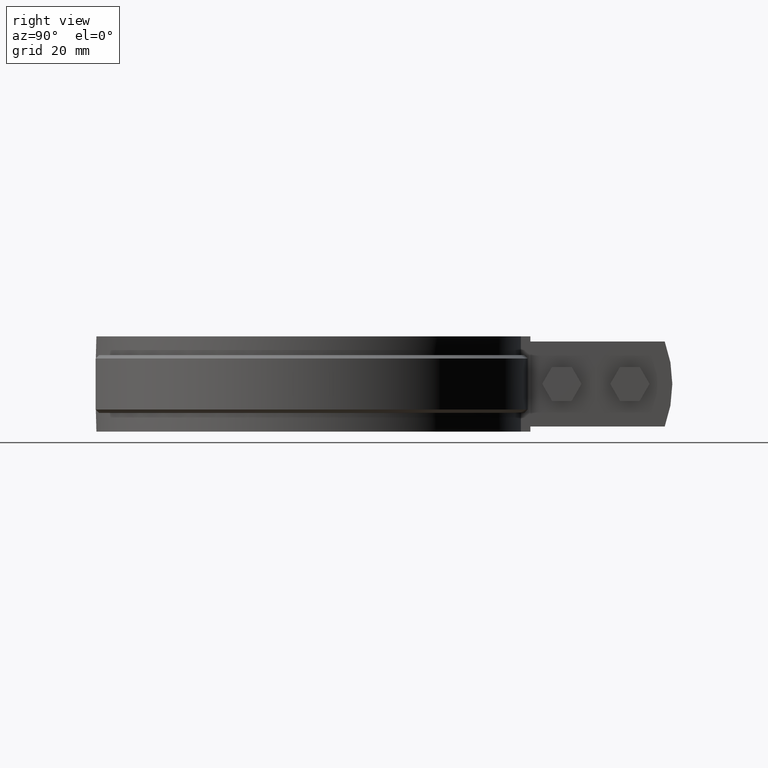
[diagram: clean part render]
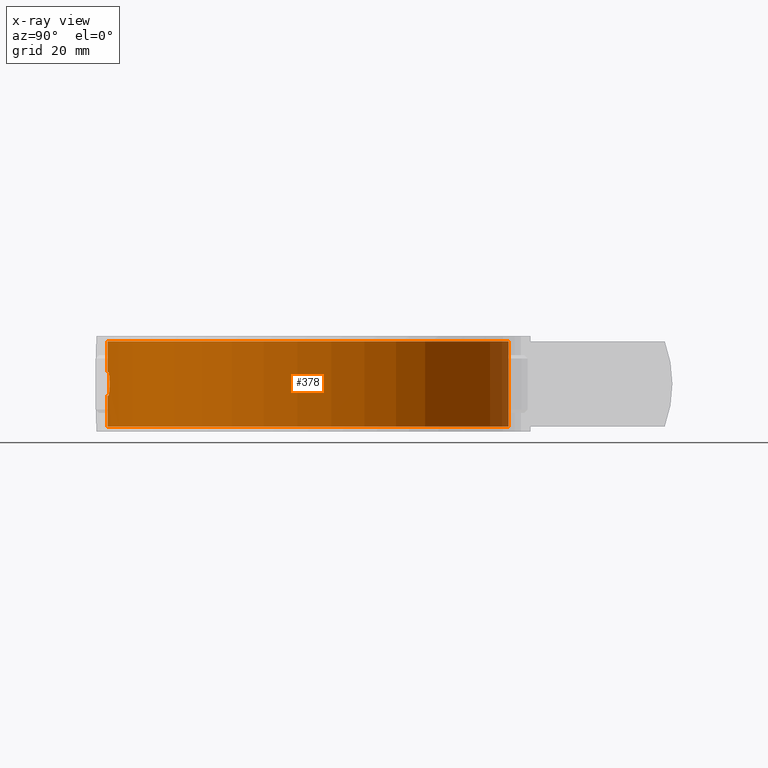
[diagram: x-ray — body ghosted, one internal face saturated and labeled with its STEP entity id]
A machine part, right view, then the same camera in x-ray: the body is ghosted and one INTERNAL B-rep face — a face not visible from any outside direction — is saturated and labeled: STEP entity #378.
In plain terms, the highlighted cylindrical surface (partial cylindrical patch) has radius 59.15 mm, axis along (0, 0, 1).
Its self-contained STEP definition (entity closure, byte-faithful):
#378 = ADVANCED_FACE( '', ( #645, #646 ), #647, .T. );
#645 = FACE_OUTER_BOUND( '', #1420, .T. );
#646 = FACE_BOUND( '', #1421, .T. );
#647 = CYLINDRICAL_SURFACE( '', #1422, 59.1500000000000 );
#1420 = EDGE_LOOP( '', ( #2889, #2890, #2891, #2892 ) );
#1421 = EDGE_LOOP( '', ( #2893, #2894, #2895, #2896, #2897, #2898, #2899, #2900, #2901, #2902, #2903, #2904, #2905, #2906, #2907, #2908 ) );
#1422 = AXIS2_PLACEMENT_3D( '', #2909, #2910, #2911 );
#2889 = ORIENTED_EDGE( '', *, *, #4095, .F. );
#2890 = ORIENTED_EDGE( '', *, *, #4029, .T. );
#2891 = ORIENTED_EDGE( '', *, *, #4024, .T. );
#2892 = ORIENTED_EDGE( '', *, *, #4096, .F. );
#2893 = ORIENTED_EDGE( '', *, *, #4097, .F. );
#2894 = ORIENTED_EDGE( '', *, *, #4098, .F. );
#2895 = ORIENTED_EDGE( '', *, *, #4091, .F. );
#2896 = ORIENTED_EDGE( '', *, *, #4099, .F. );
#2897 = ORIENTED_EDGE( '', *, *, #4057, .F. );
#2898 = ORIENTED_EDGE( '', *, *, #4100, .F. );
#2899 = ORIENTED_EDGE( '', *, *, #4101, .F. );
#2900 = ORIENTED_EDGE( '', *, *, #4102, .F. );
#2901 = ORIENTED_EDGE( '', *, *, #4103, .F. );
#2902 = ORIENTED_EDGE( '', *, *, #4104, .F. );
#2903 = ORIENTED_EDGE( '', *, *, #4105, .F. );
#2904 = ORIENTED_EDGE( '', *, *, #4106, .F. );
#2905 = ORIENTED_EDGE( '', *, *, #4107, .F. );
#2906 = ORIENTED_EDGE( '', *, *, #4108, .F. );
#2907 = ORIENTED_EDGE( '', *, *, #4109, .F. );
#2908 = ORIENTED_EDGE( '', *, *, #4110, .F. );
#2909 = CARTESIAN_POINT( '', ( 0.000000000000000, 0.000000000000000, -14.0000000000000 ) );
#2910 = DIRECTION( '', ( 0.000000000000000, 0.000000000000000, 1.00000000000000 ) );
#2911 = DIRECTION( '', ( -0.0845308537616220, -0.996420862267712, 0.000000000000000 ) );
#4024 = EDGE_CURVE( '', #4610, #4611, #4612, .T. );
#4029 = EDGE_CURVE( '', #4619, #4610, #4620, .F. );
#4057 = EDGE_CURVE( '', #4670, #4665, #4672, .T. );
#4091 = EDGE_CURVE( '', #4733, #4731, #4735, .T. );
#4095 = EDGE_CURVE( '', #4619, #4741, #4742, .T. );
#4096 = EDGE_CURVE( '', #4741, #4611, #4743, .F. );
#4097 = EDGE_CURVE( '', #4744, #4745, #4746, .T. );
#4098 = EDGE_CURVE( '', #4731, #4744, #4747, .F. );
#4099 = EDGE_CURVE( '', #4665, #4733, #4748, .F. );
#4100 = EDGE_CURVE( '', #4749, #4670, #4750, .F. );
#4101 = EDGE_CURVE( '', #4751, #4749, #4752, .T. );
#4102 = EDGE_CURVE( '', #4753, #4751, #4754, .F. );
#4103 = EDGE_CURVE( '', #4755, #4753, #4756, .T. );
#4104 = EDGE_CURVE( '', #4757, #4755, #4758, .F. );
#4105 = EDGE_CURVE( '', #4759, #4757, #4760, .T. );
#4106 = EDGE_CURVE( '', #4761, #4759, #4762, .F. );
#4107 = EDGE_CURVE( '', #4763, #4761, #4764, .T. );
#4108 = EDGE_CURVE( '', #4765, #4763, #4766, .F. );
#4109 = EDGE_CURVE( '', #4767, #4765, #4768, .T. );
#4110 = EDGE_CURVE( '', #4745, #4767, #4769, .F. );
#4610 = VERTEX_POINT( '', #6552 );
#4611 = VERTEX_POINT( '', #6553 );
#4612 = LINE( '', #6554, #6555 );
#4619 = VERTEX_POINT( '', #6564 );
#4620 = CIRCLE( '', #6565, 59.1500000000000 );
#4665 = VERTEX_POINT( '', #6803 );
#4670 = VERTEX_POINT( '', #6818 );
#4672 = B_SPLINE_CURVE_WITH_KNOTS( '', 3, ( #6821, #6822, #6823, #6824, #6825, #6826, #6827, #6828, #6829, #6830 ), .UNSPECIFIED., .F., .F., ( 4, 2, 2, 2, 4 ), ( 9.26342742239755E-019, 0.000671559393518248, 0.00134311878703649, 0.00201467818055474, 0.00268623757407299 ), .UNSPECIFIED. );
#4731 = VERTEX_POINT( '', #7196 );
#4733 = VERTEX_POINT( '', #7199 );
#4735 = B_SPLINE_CURVE_WITH_KNOTS( '', 3, ( #7202, #7203, #7204, #7205, #7206, #7207 ), .UNSPECIFIED., .F., .F., ( 4, 2, 4 ), ( 0.00245575796357472, 0.00279123420842322, 0.00312671045327171 ), .UNSPECIFIED. );
#4741 = VERTEX_POINT( '', #7214 );
#4742 = LINE( '', #7215, #7216 );
#4743 = CIRCLE( '', #7217, 59.1500000000000 );
#4744 = VERTEX_POINT( '', #7218 );
#4745 = VERTEX_POINT( '', #7219 );
#4746 = B_SPLINE_CURVE_WITH_KNOTS( '', 3, ( #7220, #7221, #7222, #7223, #7224, #7225, #7226, #7227, #7228, #7229, #7230, #7231, #7232, #7233, #7234, #7235, #7236, #7237, #7238, #7239, #7240, #7241, #7242, #7243, #7244, #7245, #7246, #7247, #7248, #7249, #7250, #7251, #7252, #7253 ), .UNSPECIFIED., .F., .F., ( 4, 2, 2, 2, 2, 2, 2, 2, 2, 2, 2, 2, 2, 2, 2, 2, 4 ), ( 5.27595548005020E-018, 0.000685840484445841, 0.00137168096889168, 0.00205752145333751, 0.00274336193778335, 0.00342920242222918, 0.00411504290667502, 0.00480088339112085, 0.00548672387556669, 0.00617256436001253, 0.00685840484445836, 0.00754424532890420, 0.00823008581335003, 0.00891592629779587, 0.00960176678224171, 0.0102876072666875, 0.0109734477511334 ), .UNSPECIFIED. );
#4747 = CIRCLE( '', #7254, 59.1500000000000 );
#4748 = ELLIPSE( '', #7255, 269.461386027857, 59.1500000000000 );
#4749 = VERTEX_POINT( '', #7256 );
#4750 = ELLIPSE( '', #7257, 269.461248569451, 59.1500000000000 );
#4751 = VERTEX_POINT( '', #7258 );
#4752 = B_SPLINE_CURVE_WITH_KNOTS( '', 3, ( #7259, #7260, #7261, #7262, #7263, #7264 ), .UNSPECIFIED., .F., .F., ( 4, 2, 4 ), ( 0.000000000000000, 0.000335831979060003, 0.000671663958120007 ), .UNSPECIFIED. );
#4753 = VERTEX_POINT( '', #7265 );
#4754 = CIRCLE( '', #7266, 59.1500000000000 );
#4755 = VERTEX_POINT( '', #7267 );
#4756 = B_SPLINE_CURVE_WITH_KNOTS( '', 3, ( #7268, #7269, #7270, #7271, #7272, #7273, #7274, #7275, #7276, #7277, #7278, #7279, #7280, #7281, #7282, #7283, #7284, #7285, #7286, #7287, #7288, #7289, #7290, #7291, #7292, #7293, #7294, #7295, #7296, #7297, #7298, #7299, #7300, #7301 ), .UNSPECIFIED., .F., .F., ( 4, 2, 2, 2, 2, 2, 2, 2, 2, 2, 2, 2, 2, 2, 2, 2, 4 ), ( 2.63797774002510E-018, 0.000685840484445827, 0.00137168096889165, 0.00205752145333748, 0.00274336193778330, 0.00342920242222913, 0.00411504290667495, 0.00480088339112077, 0.00548672387556660, 0.00617256436001242, 0.00685840484445825, 0.00754424532890407, 0.00823008581334990, 0.00891592629779572, 0.00960176678224155, 0.0102876072666874, 0.0109734477511332 ), .UNSPECIFIED. );
#4757 = VERTEX_POINT( '', #7302 );
#4758 = CIRCLE( '', #7303, 59.1500000000000 );
#4759 = VERTEX_POINT( '', #7304 );
#4760 = B_SPLINE_CURVE_WITH_KNOTS( '', 3, ( #7305, #7306, #7307, #7308, #7309, #7310 ), .UNSPECIFIED., .F., .F., ( 4, 2, 4 ), ( 0.000891799807954436, 0.00122762914136390, 0.00156345847477337 ), .UNSPECIFIED. );
#4761 = VERTEX_POINT( '', #7311 );
#4762 = ELLIPSE( '', #7312, 269.461386027933, 59.1500000000000 );
#4763 = VERTEX_POINT( '', #7313 );
#4764 = B_SPLINE_CURVE_WITH_KNOTS( '', 3, ( #7314, #7315, #7316, #7317, #7318, #7319, #7320, #7321, #7322, #7323 ), .UNSPECIFIED., .F., .F., ( 4, 2, 2, 2, 4 ), ( 9.69739903612216E-019, 0.000671559393518252, 0.00134311878703650, 0.00201467818055476, 0.00268623757407301 ), .UNSPECIFIED. );
#4765 = VERTEX_POINT( '', #7324 );
#4766 = ELLIPSE( '', #7325, 269.461248569451, 59.1500000000000 );
#4767 = VERTEX_POINT( '', #7326 );
#4768 = B_SPLINE_CURVE_WITH_KNOTS( '', 3, ( #7327, #7328, #7329, #7330, #7331, #7332 ), .UNSPECIFIED., .F., .F., ( 4, 2, 4 ), ( 0.00156361056445072, 0.00189944101561561, 0.00223527146678049 ), .UNSPECIFIED. );
#4769 = CIRCLE( '', #7333, 59.1500000000000 );
#6552 = CARTESIAN_POINT( '', ( 6.66210780370074, 58.7736235024851, -12.5000000000000 ) );
#6553 = CARTESIAN_POINT( '', ( 6.66210780370074, 58.7736235024851, 12.5000000000000 ) );
#6554 = CARTESIAN_POINT( '', ( 6.66210780370075, 58.7736235024851, -14.0000000000000 ) );
#6555 = VECTOR( '', #8190, 1000.00000000000 );
#6564 = CARTESIAN_POINT( '', ( -6.66210780370072, 58.7736235024851, -12.5000000000000 ) );
#6565 = AXIS2_PLACEMENT_3D( '', #8199, #8200, #8201 );
#6803 = CARTESIAN_POINT( '', ( 0.975609999999989, -59.1419536803435, -4.71951200000003 ) );
#6818 = CARTESIAN_POINT( '', ( -0.975609757981834, -59.1419536843359, -4.71951218674745 ) );
#6821 = CARTESIAN_POINT( '', ( -0.975609757981835, -59.1419536843359, -4.71951218674745 ) );
#6822 = CARTESIAN_POINT( '', ( -0.925764000266899, -59.1427759434023, -4.94104879757687 ) );
#6823 = CARTESIAN_POINT( '', ( -0.802006839384733, -59.1448284066473, -5.13901853152156 ) );
#6824 = CARTESIAN_POINT( '', ( -0.447387521711693, -59.1485738342658, -5.42271559104646 ) );
#6825 = CARTESIAN_POINT( '', ( -0.227075775181514, -59.1500000017834, -5.50000008621365 ) );
#6826 = CARTESIAN_POINT( '', ( 0.227076704276917, -59.1499999982166, -5.49999992065343 ) );
#6827 = CARTESIAN_POINT( '', ( 0.447393780783083, -59.1485737775223, -5.42271183234167 ) );
#6828 = CARTESIAN_POINT( '', ( 0.802006826849413, -59.1448283974158, -5.13901761295266 ) );
#6829 = CARTESIAN_POINT( '', ( 0.925764284607065, -59.1427759389158, -4.94104862074254 ) );
#6830 = CARTESIAN_POINT( '', ( 0.975609999999990, -59.1419536803435, -4.71951200000003 ) );
#7196 = CARTESIAN_POINT( '', ( 1.65000000000005, -59.1269819963779, -3.50000000000001 ) );
#7199 = CARTESIAN_POINT( '', ( 1.16219512100137, -59.1385813365583, -3.89024390662345 ) );
#7202 = CARTESIAN_POINT( '', ( 1.16219512100946, -59.1385813365581, -3.89024390662492 ) );
#7203 = CARTESIAN_POINT( '', ( 1.18676342495071, -59.1380985187034, -3.78105144028861 ) );
#7204 = CARTESIAN_POINT( '', ( 1.25006733674977, -59.1368536826979, -3.67972455396494 ) );
#7205 = CARTESIAN_POINT( '', ( 1.42474342103315, -59.1329031759769, -3.53980224891950 ) );
#7206 = CARTESIAN_POINT( '', ( 1.53660865160900, -59.1301463000262, -3.50000000000003 ) );
#7207 = CARTESIAN_POINT( '', ( 1.65000000000005, -59.1269819963779, -3.50000000000003 ) );
#7214 = CARTESIAN_POINT( '', ( -6.66210780370072, 58.7736235024851, 12.5000000000000 ) );
#7215 = CARTESIAN_POINT( '', ( -6.66210780370072, 58.7736235024851, -14.0000000000000 ) );
#7216 = VECTOR( '', #8275, 1000.00000000000 );
#7217 = AXIS2_PLACEMENT_3D( '', #8276, #8277, #8278 );
#7218 = CARTESIAN_POINT( '', ( 5.00000000000003, -58.9382940031352, -3.50000000000002 ) );
#7219 = CARTESIAN_POINT( '', ( 4.99999999999998, -58.9382940031352, 3.49999999999999 ) );
#7220 = CARTESIAN_POINT( '', ( 5.00000000000003, -58.9382940031352, -3.50000000000005 ) );
#7221 = CARTESIAN_POINT( '', ( 5.23108472953870, -58.9186900484019, -3.50000000000005 ) );
#7222 = CARTESIAN_POINT( '', ( 5.45819630642193, -58.8980553882998, -3.47733987116120 ) );
#7223 = CARTESIAN_POINT( '', ( 5.90483281279596, -58.8549554829124, -3.38867437439390 ) );
#7224 = CARTESIAN_POINT( '', ( 6.12663036380665, -58.8322377638681, -3.32161878510515 ) );
#7225 = CARTESIAN_POINT( '', ( 6.54985499710422, -58.7866243242112, -3.14648960242452 ) );
#7226 = CARTESIAN_POINT( '', ( 6.75056696535412, -58.7638403280690, -3.03934362483283 ) );
#7227 = CARTESIAN_POINT( '', ( 7.13046567819295, -58.7189538706935, -2.78625382261613 ) );
#7228 = CARTESIAN_POINT( '', ( 7.31051535566461, -58.6967236501177, -2.63885514677865 ) );
#7229 = CARTESIAN_POINT( '', ( 7.63349595950092, -58.6555942895473, -2.31662183485662 ) );
#7230 = CARTESIAN_POINT( '', ( 7.77849157376942, -58.6364586331887, -2.14076483153374 ) );
#7231 = CARTESIAN_POINT( '', ( 8.03472267801004, -58.6018979529872, -1.75879156155893 ) );
#7232 = CARTESIAN_POINT( '', ( 8.14403067117517, -58.5867314208868, -1.55472622131932 ) );
#7233 = CARTESIAN_POINT( '', ( 8.31932961901536, -58.5620960079670, -1.13320490860009 ) );
#7234 = CARTESIAN_POINT( '', ( 8.38677917544447, -58.5524254931442, -0.912778948258099 ) );
#7235 = CARTESIAN_POINT( '', ( 8.47740967954881, -58.5393724017687, -0.459413225960789 ) );
#7236 = CARTESIAN_POINT( '', ( 8.49981926058052, -58.5361048633271, -0.231619601638272 ) );
#7237 = CARTESIAN_POINT( '', ( 8.50017858271889, -58.5360526863133, 0.226124712646307 ) );
#7238 = CARTESIAN_POINT( '', ( 8.47740917893715, -58.5393721009278, 0.458600165287511 ) );
#7239 = CARTESIAN_POINT( '', ( 8.38772872888854, -58.5522891023792, 0.908835941642522 ) );
#7240 = CARTESIAN_POINT( '', ( 8.32137719446028, -58.5618054638645, 1.12746850434298 ) );
#7241 = CARTESIAN_POINT( '', ( 8.14559362537556, -58.5865145070966, 1.55176429916493 ) );
#7242 = CARTESIAN_POINT( '', ( 8.03571203668991, -58.6017595818350, 1.75684685243296 ) );
#7243 = CARTESIAN_POINT( '', ( 7.78193311994009, -58.6359992746825, 2.13609610008257 ) );
#7244 = CARTESIAN_POINT( '', ( 7.63715711120224, -58.6551228864835, 2.31272799926857 ) );
#7245 = CARTESIAN_POINT( '', ( 7.31049668957843, -58.6967311502211, 2.63911225134749 ) );
#7246 = CARTESIAN_POINT( '', ( 7.13372425938852, -58.7185558813006, 2.78370983069290 ) );
#7247 = CARTESIAN_POINT( '', ( 6.75516974813841, -58.7633092011354, 3.03664268425166 ) );
#7248 = CARTESIAN_POINT( '', ( 6.55091862757238, -58.7865057023843, 3.14596549535335 ) );
#7249 = CARTESIAN_POINT( '', ( 6.12775257217611, -58.8321207842767, 3.32123796546634 ) );
#7250 = CARTESIAN_POINT( '', ( 5.91000018107458, -58.8544389990636, 3.38733337480229 ) );
#7251 = CARTESIAN_POINT( '', ( 5.46223010274416, -58.8976836075875, 3.47684786174522 ) );
#7252 = CARTESIAN_POINT( '', ( 5.23108267661422, -58.9186902225607, 3.50000000000000 ) );
#7253 = CARTESIAN_POINT( '', ( 4.99999999999998, -58.9382940031352, 3.49999999999999 ) );
#7254 = AXIS2_PLACEMENT_3D( '', #8279, #8280, #8281 );
#7255 = AXIS2_PLACEMENT_3D( '', #8282, #8283, #8284 );
#7256 = CARTESIAN_POINT( '', ( -1.16219499393677, -59.1385813390554, -3.89024402694773 ) );
#7257 = AXIS2_PLACEMENT_3D( '', #8285, #8286, #8287 );
#7258 = CARTESIAN_POINT( '', ( -1.64999999892698, -59.1269819964079, -3.50000000000000 ) );
#7259 = CARTESIAN_POINT( '', ( -1.64999999785400, -59.1269819964378, -3.50000000000002 ) );
#7260 = CARTESIAN_POINT( '', ( -1.53648889603535, -59.1301496419261, -3.50000000000002 ) );
#7261 = CARTESIAN_POINT( '', ( -1.42634097780646, -59.1328666315414, -3.53862533781436 ) );
#7262 = CARTESIAN_POINT( '', ( -1.24902063126806, -59.1368777676950, -3.68046045874459 ) );
#7263 = CARTESIAN_POINT( '', ( -1.18712084828899, -59.1380914946511, -3.77946242125231 ) );
#7264 = CARTESIAN_POINT( '', ( -1.16219499393677, -59.1385813390554, -3.89024402694773 ) );
#7265 = CARTESIAN_POINT( '', ( -4.99999999999992, -58.9382940031352, -3.49999999999999 ) );
#7266 = AXIS2_PLACEMENT_3D( '', #8288, #8289, #8290 );
#7267 = CARTESIAN_POINT( '', ( -4.99999999999992, -58.9382940031352, 3.49999999999998 ) );
#7268 = CARTESIAN_POINT( '', ( -4.99999999999992, -58.9382940031352, 3.49999999999997 ) );
#7269 = CARTESIAN_POINT( '', ( -5.23108472953858, -58.9186900484019, 3.49999999999997 ) );
#7270 = CARTESIAN_POINT( '', ( -5.45819630642181, -58.8980553882998, 3.47733987116112 ) );
#7271 = CARTESIAN_POINT( '', ( -5.90483281279584, -58.8549554829124, 3.38867437439382 ) );
#7272 = CARTESIAN_POINT( '', ( -6.12663036380652, -58.8322377638681, 3.32161878510508 ) );
#7273 = CARTESIAN_POINT( '', ( -6.54985499710409, -58.7866243242112, 3.14648960242445 ) );
#7274 = CARTESIAN_POINT( '', ( -6.75056696535398, -58.7638403280690, 3.03934362483276 ) );
#7275 = CARTESIAN_POINT( '', ( -7.13046567819281, -58.7189538706935, 2.78625382261606 ) );
#7276 = CARTESIAN_POINT( '', ( -7.31051535566446, -58.6967236501177, 2.63885514677859 ) );
#7277 = CARTESIAN_POINT( '', ( -7.63349595950077, -58.6555942895473, 2.31662183485656 ) );
#7278 = CARTESIAN_POINT( '', ( -7.77849157376927, -58.6364586331887, 2.14076483153368 ) );
#7279 = CARTESIAN_POINT( '', ( -8.03472267800989, -58.6018979529872, 1.75879156155888 ) );
#7280 = CARTESIAN_POINT( '', ( -8.14403067117501, -58.5867314208869, 1.55472622131928 ) );
#7281 = CARTESIAN_POINT( '', ( -8.31932961901521, -58.5620960079670, 1.13320490860005 ) );
#7282 = CARTESIAN_POINT( '', ( -8.38677917544432, -58.5524254931442, 0.912778948258069 ) );
#7283 = CARTESIAN_POINT( '', ( -8.47740967954866, -58.5393724017687, 0.459413225960766 ) );
#7284 = CARTESIAN_POINT( '', ( -8.49981926058036, -58.5361048633271, 0.231619601638253 ) );
#7285 = CARTESIAN_POINT( '', ( -8.50017858271874, -58.5360526863133, -0.226124712646318 ) );
#7286 = CARTESIAN_POINT( '', ( -8.47740917893700, -58.5393721009278, -0.458600165287519 ) );
#7287 = CARTESIAN_POINT( '', ( -8.38772872888840, -58.5522891023792, -0.908835941642525 ) );
#7288 = CARTESIAN_POINT( '', ( -8.32137719446014, -58.5618054638645, -1.12746850434298 ) );
#7289 = CARTESIAN_POINT( '', ( -8.14559362537543, -58.5865145070966, -1.55176429916493 ) );
#7290 = CARTESIAN_POINT( '', ( -8.03571203668978, -58.6017595818350, -1.75684685243295 ) );
#7291 = CARTESIAN_POINT( '', ( -7.78193311993997, -58.6359992746825, -2.13609610008255 ) );
#7292 = CARTESIAN_POINT( '', ( -7.63715711120212, -58.6551228864835, -2.31272799926855 ) );
#7293 = CARTESIAN_POINT( '', ( -7.31049668957832, -58.6967311502211, -2.63911225134747 ) );
#7294 = CARTESIAN_POINT( '', ( -7.13372425938842, -58.7185558813006, -2.78370983069289 ) );
#7295 = CARTESIAN_POINT( '', ( -6.75516974813832, -58.7633092011354, -3.03664268425164 ) );
#7296 = CARTESIAN_POINT( '', ( -6.55091862757230, -58.7865057023843, -3.14596549535334 ) );
#7297 = CARTESIAN_POINT( '', ( -6.12775257217603, -58.8321207842767, -3.32123796546633 ) );
#7298 = CARTESIAN_POINT( '', ( -5.91000018107450, -58.8544389990637, -3.38733337480228 ) );
#7299 = CARTESIAN_POINT( '', ( -5.46223010274409, -58.8976836075875, -3.47684786174522 ) );
#7300 = CARTESIAN_POINT( '', ( -5.23108267661416, -58.9186902225607, -3.50000000000000 ) );
#7301 = CARTESIAN_POINT( '', ( -4.99999999999992, -58.9382940031352, -3.50000000000000 ) );
#7302 = CARTESIAN_POINT( '', ( -1.64999999999988, -59.1269819963780, 3.49999999999872 ) );
#7303 = AXIS2_PLACEMENT_3D( '', #8291, #8292, #8293 );
#7304 = CARTESIAN_POINT( '', ( -1.16219512100785, -59.1385813365581, 3.89024390662614 ) );
#7305 = CARTESIAN_POINT( '', ( -1.16219512100905, -59.1385813365581, 3.89024390662649 ) );
#7306 = CARTESIAN_POINT( '', ( -1.18681763533951, -59.1380974533574, 3.78081050521570 ) );
#7307 = CARTESIAN_POINT( '', ( -1.25009966535913, -59.1368533580642, 3.67959766527191 ) );
#7308 = CARTESIAN_POINT( '', ( -1.42526063798144, -59.1328910707090, 3.53948924778613 ) );
#7309 = CARTESIAN_POINT( '', ( -1.53787539475783, -59.1301109502396, 3.50000000000004 ) );
#7310 = CARTESIAN_POINT( '', ( -1.64999999999979, -59.1269819963779, 3.49999999999999 ) );
#7311 = CARTESIAN_POINT( '', ( -0.975609999999990, -59.1419536803435, 4.71951200000001 ) );
#7312 = AXIS2_PLACEMENT_3D( '', #8294, #8295, #8296 );
#7313 = CARTESIAN_POINT( '', ( 0.975609757981835, -59.1419536843359, 4.71951218674745 ) );
#7314 = CARTESIAN_POINT( '', ( 0.975609757981838, -59.1419536843359, 4.71951218674745 ) );
#7315 = CARTESIAN_POINT( '', ( 0.925764000266901, -59.1427759434023, 4.94104879757687 ) );
#7316 = CARTESIAN_POINT( '', ( 0.802006839384733, -59.1448284066473, 5.13901853152156 ) );
#7317 = CARTESIAN_POINT( '', ( 0.447387521711690, -59.1485738342658, 5.42271559104647 ) );
#7318 = CARTESIAN_POINT( '', ( 0.227075775181507, -59.1500000017834, 5.50000008621365 ) );
#7319 = CARTESIAN_POINT( '', ( -0.227076704276926, -59.1499999982166, 5.49999992065343 ) );
#7320 = CARTESIAN_POINT( '', ( -0.447393780783093, -59.1485737775223, 5.42271183234166 ) );
#7321 = CARTESIAN_POINT( '', ( -0.802006826849420, -59.1448283974158, 5.13901761295264 ) );
#7322 = CARTESIAN_POINT( '', ( -0.925764284607072, -59.1427759389158, 4.94104862074252 ) );
#7323 = CARTESIAN_POINT( '', ( -0.975609999999992, -59.1419536803435, 4.71951200000001 ) );
#7324 = CARTESIAN_POINT( '', ( 1.16219499999883, -59.1385813389362, 3.89024399999961 ) );
#7325 = AXIS2_PLACEMENT_3D( '', #8297, #8298, #8299 );
#7326 = CARTESIAN_POINT( '', ( 1.64999999892722, -59.1269819964079, 3.49999999999870 ) );
#7327 = CARTESIAN_POINT( '', ( 1.64999999892730, -59.1269819964079, 3.49999999999996 ) );
#7328 = CARTESIAN_POINT( '', ( 1.53787531881287, -59.1301109523569, 3.49999999975930 ) );
#7329 = CARTESIAN_POINT( '', ( 1.42526283195167, -59.1328910204556, 3.53948764061170 ) );
#7330 = CARTESIAN_POINT( '', ( 1.25009831357253, -59.1368533892667, 3.67959852673241 ) );
#7331 = CARTESIAN_POINT( '', ( 1.18681785913212, -59.1380974490099, 3.78080906833099 ) );
#7332 = CARTESIAN_POINT( '', ( 1.16219500000005, -59.1385813389362, 3.89024399999980 ) );
#7333 = AXIS2_PLACEMENT_3D( '', #8300, #8301, #8302 );
#8190 = DIRECTION( '', ( 0.000000000000000, 0.000000000000000, 1.00000000000000 ) );
#8199 = CARTESIAN_POINT( '', ( 0.000000000000000, 0.000000000000000, -12.5000000000000 ) );
#8200 = DIRECTION( '', ( 0.000000000000000, 0.000000000000000, -1.00000000000000 ) );
#8201 = DIRECTION( '', ( -1.00000000000000, 0.000000000000000, 0.000000000000000 ) );
#8275 = DIRECTION( '', ( 0.000000000000000, 0.000000000000000, 1.00000000000000 ) );
#8276 = CARTESIAN_POINT( '', ( 0.000000000000000, 0.000000000000000, 12.5000000000000 ) );
#8277 = DIRECTION( '', ( 0.000000000000000, 0.000000000000000, -1.00000000000000 ) );
#8278 = DIRECTION( '', ( -1.00000000000000, 0.000000000000000, 0.000000000000000 ) );
#8279 = CARTESIAN_POINT( '', ( 0.000000000000000, 0.000000000000000, -3.49999999999999 ) );
#8280 = DIRECTION( '', ( -6.12303176911189E-017, 0.000000000000000, -1.00000000000000 ) );
#8281 = DIRECTION( '', ( -1.00000000000000, 0.000000000000000, 6.12303176911189E-017 ) );
#8282 = CARTESIAN_POINT( '', ( 0.000000000000000, 0.000000000000000, -9.05556109223489 ) );
#8283 = DIRECTION( '', ( 0.975609806487704, 0.000000000000000, -0.219511971165639 ) );
#8284 = DIRECTION( '', ( -0.219511971165639, 0.000000000000000, -0.975609806487704 ) );
#8285 = CARTESIAN_POINT( '', ( 0.000000000000000, 0.000000000000000, -9.05555787944975 ) );
#8286 = DIRECTION( '', ( -0.975609781292646, 0.000000000000000, -0.219512083143765 ) );
#8287 = DIRECTION( '', ( 0.219512083143765, 0.000000000000000, -0.975609781292646 ) );
#8288 = CARTESIAN_POINT( '', ( 0.000000000000000, 0.000000000000000, -3.49999999999999 ) );
#8289 = DIRECTION( '', ( -6.12303176911189E-017, 0.000000000000000, -1.00000000000000 ) );
#8290 = DIRECTION( '', ( -1.00000000000000, 0.000000000000000, 6.12303176911189E-017 ) );
#8291 = CARTESIAN_POINT( '', ( 0.000000000000000, 0.000000000000000, 3.49999999999999 ) );
#8292 = DIRECTION( '', ( 2.29561756065156E-049, 3.74915180455535E-033, 1.00000000000000 ) );
#8293 = DIRECTION( '', ( 0.000000000000000, -1.00000000000000, 3.74915180455535E-033 ) );
#8294 = CARTESIAN_POINT( '', ( 0.000000000000000, 0.000000000000000, 9.05556109223616 ) );
#8295 = DIRECTION( '', ( -0.975609806487718, 0.000000000000000, 0.219511971165577 ) );
#8296 = DIRECTION( '', ( -0.219511971165577, 0.000000000000000, -0.975609806487718 ) );
#8297 = CARTESIAN_POINT( '', ( 0.000000000000000, 0.000000000000000, 9.05555787944971 ) );
#8298 = DIRECTION( '', ( 0.975609781292646, 0.000000000000000, 0.219512083143765 ) );
#8299 = DIRECTION( '', ( 0.219512083143765, 0.000000000000000, -0.975609781292646 ) );
#8300 = CARTESIAN_POINT( '', ( 0.000000000000000, 0.000000000000000, 3.49999999999999 ) );
#8301 = DIRECTION( '', ( 2.29561756065156E-049, 3.74915180455535E-033, 1.00000000000000 ) );
#8302 = DIRECTION( '', ( 0.000000000000000, -1.00000000000000, 3.74915180455535E-033 ) );